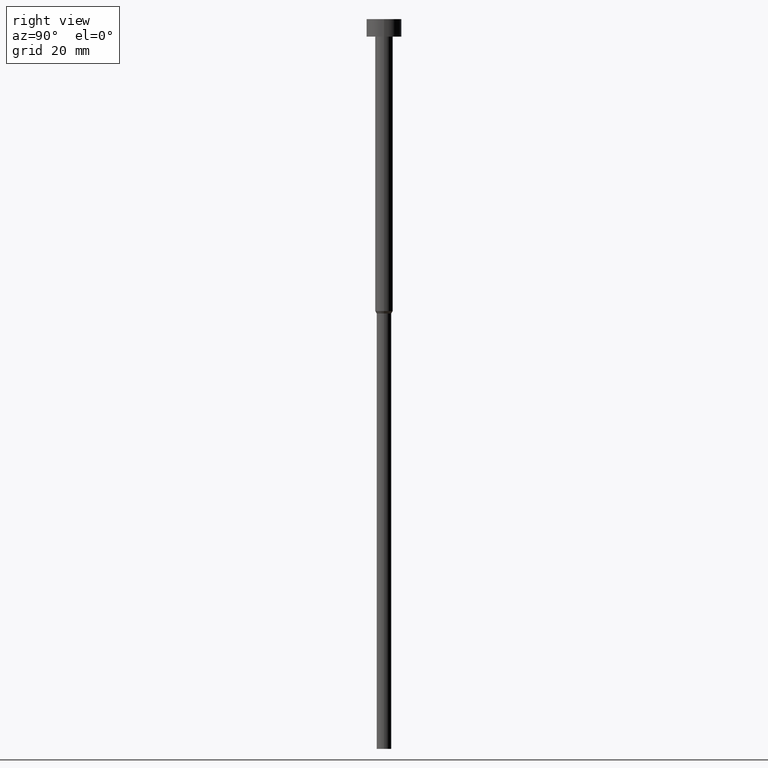
[diagram: clean part render]
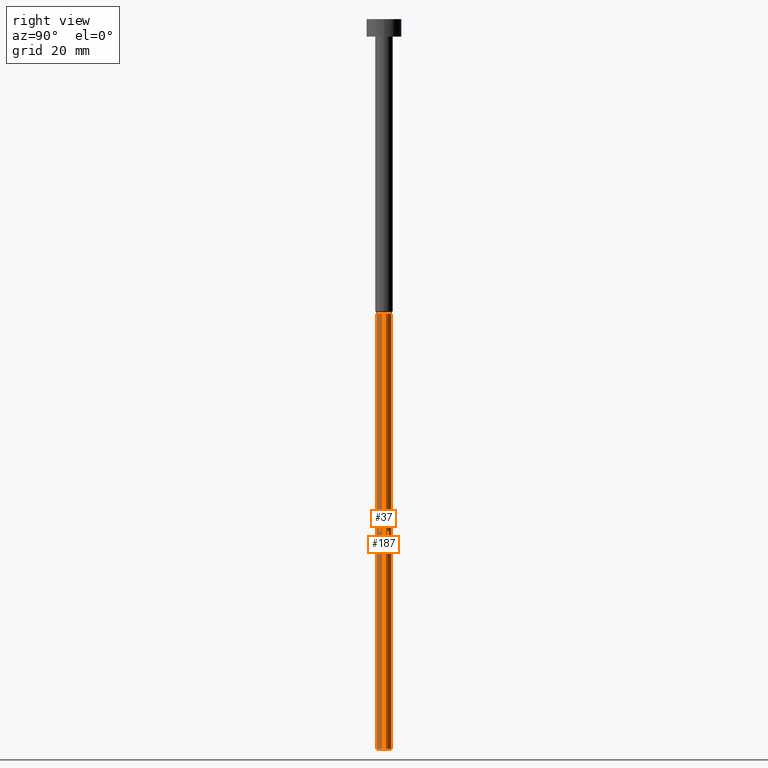
[diagram: same view with one multi-face feature highlighted, each face labeled with its STEP entity id]
A machine part, right view. The highlighted faces form ONE feature: a constant-radius fillet chain: 2 tangent blend faces with common blend radius 1.25 mm. The faces share edges in the B-rep.
Their STEP definitions:
[1] entity #37 (Cylinder):
#22 = VERTEX_POINT ( 'NONE', #197 ) ;
#30 = VERTEX_POINT ( 'NONE', #59 ) ;
#37 = ADVANCED_FACE ( 'NONE', ( #289 ), #285, .T. ) ;
#50 = AXIS2_PLACEMENT_3D ( 'NONE', #262, #253, #344 ) ;
#59 = CARTESIAN_POINT ( 'NONE',  ( 1.250000000000000000, 0.000000000000000000, -125.0000000000000000 ) ) ;
#67 = CIRCLE ( 'NONE', #50, 1.250000000000000000 ) ;
#72 = VECTOR ( 'NONE', #340, 1000.000000000000000 ) ;
#80 = CIRCLE ( 'NONE', #343, 1.250000000000000000 ) ;
#81 = ORIENTED_EDGE ( 'NONE', *, *, #196, .F. ) ;
#98 = EDGE_CURVE ( 'NONE', #252, #30, #67, .T. ) ;
#102 = LINE ( 'NONE', #291, #266 ) ;
#105 = ORIENTED_EDGE ( 'NONE', *, *, #288, .F. ) ;
#108 = EDGE_CURVE ( 'NONE', #30, #22, #114, .T. ) ;
#114 = LINE ( 'NONE', #201, #72 ) ;
#116 = CARTESIAN_POINT ( 'NONE',  ( 0.000000000000000000, 0.000000000000000000, -50.43301270189222407 ) ) ;
#119 = CARTESIAN_POINT ( 'NONE',  ( -1.250000000000000000, 1.530808498934191571E-16, -50.43301270189222407 ) ) ;
#129 = EDGE_LOOP ( 'NONE', ( #105, #237, #305, #81 ) ) ;
#176 = DIRECTION ( 'NONE',  ( 1.000000000000000000, 0.000000000000000000, 0.000000000000000000 ) ) ;
#196 = EDGE_CURVE ( 'NONE', #355, #22, #80, .T. ) ;
#197 = CARTESIAN_POINT ( 'NONE',  ( 1.250000000000000000, 0.000000000000000000, -50.43301270189222407 ) ) ;
#201 = CARTESIAN_POINT ( 'NONE',  ( 1.250000000000000000, 0.000000000000000000, 0.000000000000000000 ) ) ;
#203 = DIRECTION ( 'NONE',  ( -0.000000000000000000, -0.000000000000000000, 1.000000000000000000 ) ) ;
#210 = DIRECTION ( 'NONE',  ( -0.000000000000000000, -0.000000000000000000, 1.000000000000000000 ) ) ;
#229 = CARTESIAN_POINT ( 'NONE',  ( 0.000000000000000000, 0.000000000000000000, 0.000000000000000000 ) ) ;
#236 = CARTESIAN_POINT ( 'NONE',  ( -1.250000000000000000, 1.530808498934191571E-16, -125.0000000000000000 ) ) ;
#237 = ORIENTED_EDGE ( 'NONE', *, *, #98, .T. ) ;
#245 = AXIS2_PLACEMENT_3D ( 'NONE', #229, #203, #314 ) ;
#252 = VERTEX_POINT ( 'NONE', #236 ) ;
#253 = DIRECTION ( 'NONE',  ( -0.000000000000000000, -0.000000000000000000, 1.000000000000000000 ) ) ;
#262 = CARTESIAN_POINT ( 'NONE',  ( 0.000000000000000000, 0.000000000000000000, -125.0000000000000000 ) ) ;
#266 = VECTOR ( 'NONE', #210, 1000.000000000000000 ) ;
#285 = CYLINDRICAL_SURFACE ( 'NONE', #245, 1.250000000000000000 ) ;
#288 = EDGE_CURVE ( 'NONE', #252, #355, #102, .T. ) ;
#289 = FACE_OUTER_BOUND ( 'NONE', #129, .T. ) ;
#291 = CARTESIAN_POINT ( 'NONE',  ( -1.250000000000000000, 1.530808498934191571E-16, 0.000000000000000000 ) ) ;
#305 = ORIENTED_EDGE ( 'NONE', *, *, #108, .T. ) ;
#314 = DIRECTION ( 'NONE',  ( 1.000000000000000000, 0.000000000000000000, 0.000000000000000000 ) ) ;
#316 = DIRECTION ( 'NONE',  ( -0.000000000000000000, -0.000000000000000000, 1.000000000000000000 ) ) ;
#340 = DIRECTION ( 'NONE',  ( -0.000000000000000000, -0.000000000000000000, 1.000000000000000000 ) ) ;
#343 = AXIS2_PLACEMENT_3D ( 'NONE', #116, #316, #176 ) ;
#344 = DIRECTION ( 'NONE',  ( 1.000000000000000000, 0.000000000000000000, 0.000000000000000000 ) ) ;
#355 = VERTEX_POINT ( 'NONE', #119 ) ;
[2] entity #187 (Cylinder):
#22 = VERTEX_POINT ( 'NONE', #197 ) ;
#30 = VERTEX_POINT ( 'NONE', #59 ) ;
#35 = CIRCLE ( 'NONE', #225, 1.250000000000000000 ) ;
#39 = CARTESIAN_POINT ( 'NONE',  ( 0.000000000000000000, 0.000000000000000000, 0.000000000000000000 ) ) ;
#43 = DIRECTION ( 'NONE',  ( 1.000000000000000000, 0.000000000000000000, 0.000000000000000000 ) ) ;
#57 = DIRECTION ( 'NONE',  ( 1.000000000000000000, 0.000000000000000000, 0.000000000000000000 ) ) ;
#59 = CARTESIAN_POINT ( 'NONE',  ( 1.250000000000000000, 0.000000000000000000, -125.0000000000000000 ) ) ;
#72 = VECTOR ( 'NONE', #340, 1000.000000000000000 ) ;
#87 = AXIS2_PLACEMENT_3D ( 'NONE', #39, #142, #256 ) ;
#102 = LINE ( 'NONE', #291, #266 ) ;
#108 = EDGE_CURVE ( 'NONE', #30, #22, #114, .T. ) ;
#114 = LINE ( 'NONE', #201, #72 ) ;
#119 = CARTESIAN_POINT ( 'NONE',  ( -1.250000000000000000, 1.530808498934191571E-16, -50.43301270189222407 ) ) ;
#142 = DIRECTION ( 'NONE',  ( -0.000000000000000000, -0.000000000000000000, 1.000000000000000000 ) ) ;
#158 = DIRECTION ( 'NONE',  ( -0.000000000000000000, -0.000000000000000000, 1.000000000000000000 ) ) ;
#159 = ORIENTED_EDGE ( 'NONE', *, *, #288, .T. ) ;
#174 = FACE_OUTER_BOUND ( 'NONE', #199, .T. ) ;
#177 = CIRCLE ( 'NONE', #279, 1.250000000000000000 ) ;
#181 = CARTESIAN_POINT ( 'NONE',  ( 0.000000000000000000, 0.000000000000000000, -50.43301270189222407 ) ) ;
#187 = ADVANCED_FACE ( 'NONE', ( #174 ), #230, .T. ) ;
#194 = ORIENTED_EDGE ( 'NONE', *, *, #108, .F. ) ;
#197 = CARTESIAN_POINT ( 'NONE',  ( 1.250000000000000000, 0.000000000000000000, -50.43301270189222407 ) ) ;
#199 = EDGE_LOOP ( 'NONE', ( #264, #159, #214, #194 ) ) ;
#201 = CARTESIAN_POINT ( 'NONE',  ( 1.250000000000000000, 0.000000000000000000, 0.000000000000000000 ) ) ;
#210 = DIRECTION ( 'NONE',  ( -0.000000000000000000, -0.000000000000000000, 1.000000000000000000 ) ) ;
#214 = ORIENTED_EDGE ( 'NONE', *, *, #265, .F. ) ;
#225 = AXIS2_PLACEMENT_3D ( 'NONE', #181, #158, #57 ) ;
#230 = CYLINDRICAL_SURFACE ( 'NONE', #87, 1.250000000000000000 ) ;
#236 = CARTESIAN_POINT ( 'NONE',  ( -1.250000000000000000, 1.530808498934191571E-16, -125.0000000000000000 ) ) ;
#252 = VERTEX_POINT ( 'NONE', #236 ) ;
#256 = DIRECTION ( 'NONE',  ( 1.000000000000000000, 0.000000000000000000, 0.000000000000000000 ) ) ;
#264 = ORIENTED_EDGE ( 'NONE', *, *, #338, .T. ) ;
#265 = EDGE_CURVE ( 'NONE', #22, #355, #35, .T. ) ;
#266 = VECTOR ( 'NONE', #210, 1000.000000000000000 ) ;
#279 = AXIS2_PLACEMENT_3D ( 'NONE', #287, #281, #43 ) ;
#281 = DIRECTION ( 'NONE',  ( -0.000000000000000000, -0.000000000000000000, 1.000000000000000000 ) ) ;
#287 = CARTESIAN_POINT ( 'NONE',  ( 0.000000000000000000, 0.000000000000000000, -125.0000000000000000 ) ) ;
#288 = EDGE_CURVE ( 'NONE', #252, #355, #102, .T. ) ;
#291 = CARTESIAN_POINT ( 'NONE',  ( -1.250000000000000000, 1.530808498934191571E-16, 0.000000000000000000 ) ) ;
#338 = EDGE_CURVE ( 'NONE', #30, #252, #177, .T. ) ;
#340 = DIRECTION ( 'NONE',  ( -0.000000000000000000, -0.000000000000000000, 1.000000000000000000 ) ) ;
#355 = VERTEX_POINT ( 'NONE', #119 ) ;